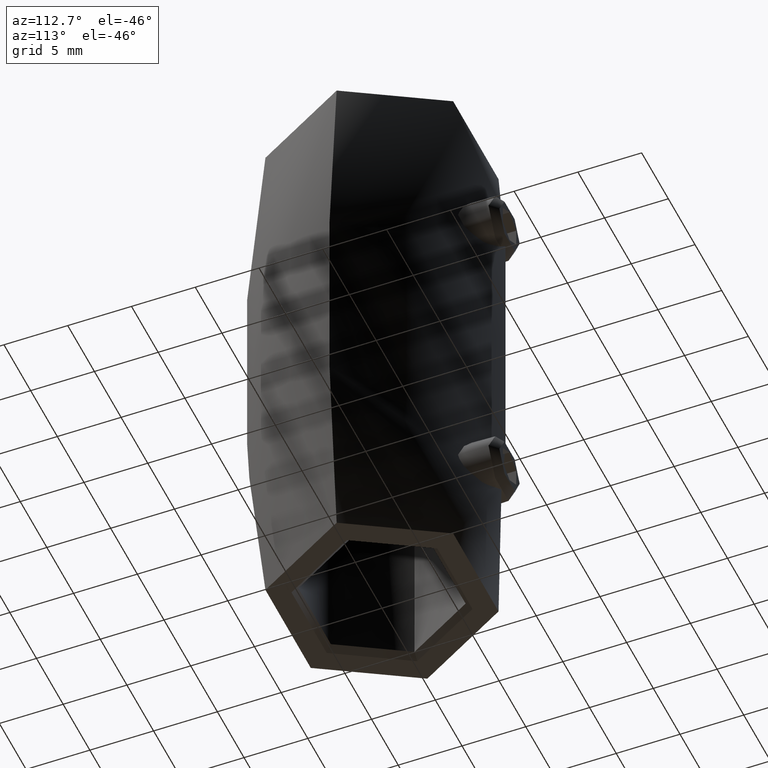
[diagram: clean part render]
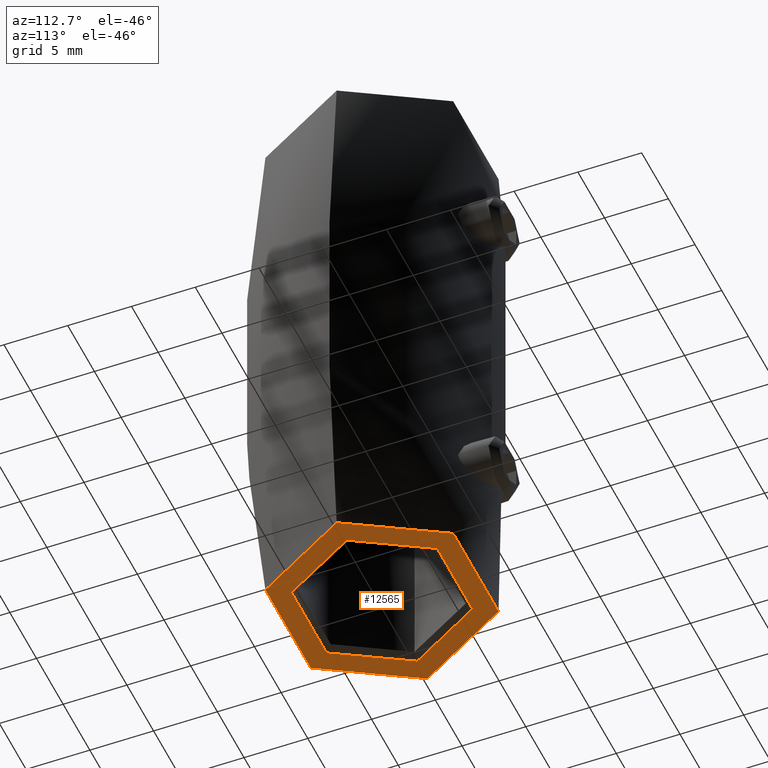
[diagram: same view with one face highlighted and labeled with its STEP entity id]
A machine part, auxiliary view. The second image highlights one B-rep face of the part: STEP entity #12565.
In plain terms, the highlighted planar face has unit normal (0, 0, 1).
Its self-contained STEP definition (entity closure, byte-faithful):
#317 = VERTEX_POINT ( 'NONE', #12329 ) ;
#1122 = ORIENTED_EDGE ( 'NONE', *, *, #11279, .F. ) ;
#2310 = CARTESIAN_POINT ( 'NONE',  ( 0.000000000000000000, 0.000000000000000000, -22.50000000000000000 ) ) ;
#2966 = DIRECTION ( 'NONE',  ( -0.000000000000000000, -0.000000000000000000, 1.000000000000000000 ) ) ;
#3221 = DIRECTION ( 'NONE',  ( 1.000000000000000000, 0.000000000000000000, 0.000000000000000000 ) ) ;
#3537 = DIRECTION ( 'NONE',  ( -0.000000000000000000, -0.000000000000000000, 1.000000000000000000 ) ) ;
#3576 = FACE_OUTER_BOUND ( 'NONE', #7611, .T. ) ;
#4242 = CARTESIAN_POINT ( 'NONE',  ( 0.000000000000000000, 0.000000000000000000, -22.50000000000000000 ) ) ;
#4318 = CARTESIAN_POINT ( 'NONE',  ( -6.600000000000001421, 0.000000000000000000, -22.50000000000000000 ) ) ;
#4337 = VERTEX_POINT ( 'NONE', #12863 ) ;
#4782 = ORIENTED_EDGE ( 'NONE', *, *, #14873, .T. ) ;
#5717 = AXIS2_PLACEMENT_3D ( 'NONE', #2310, #3537, #11269 ) ;
#7015 = FACE_BOUND ( 'NONE', #10613, .T. ) ;
#7186 = CARTESIAN_POINT ( 'NONE',  ( 0.000000000000000000, 6.099999999999999645, -22.50000000000000000 ) ) ;
#7313 = VERTEX_POINT ( 'NONE', #10211 ) ;
#7611 = EDGE_LOOP ( 'NONE', ( #7762, #1122 ) ) ;
#7762 = ORIENTED_EDGE ( 'NONE', *, *, #9379, .F. ) ;
#8233 = VERTEX_POINT ( 'NONE', #4318 ) ;
#8241 = AXIS2_PLACEMENT_3D ( 'NONE', #10946, #15919, #8308 ) ;
#8308 = DIRECTION ( 'NONE',  ( 1.000000000000000000, 0.000000000000000000, 0.000000000000000000 ) ) ;
#8329 = DIRECTION ( 'NONE',  ( 0.000000000000000000, -0.000000000000000000, 1.000000000000000000 ) ) ;
#8485 = DIRECTION ( 'NONE',  ( 1.000000000000000000, 0.000000000000000000, 0.000000000000000000 ) ) ;
#8570 = AXIS2_PLACEMENT_3D ( 'NONE', #13320, #16074, #3221 ) ;
#8643 = EDGE_CURVE ( 'NONE', #8233, #4337, #9862, .T. ) ;
#9379 = EDGE_CURVE ( 'NONE', #7313, #317, #11880, .T. ) ;
#9862 = CIRCLE ( 'NONE', #13510, 6.600000000000001421 ) ;
#10211 = CARTESIAN_POINT ( 'NONE',  ( 8.499999999999996447, 0.000000000000000000, -22.50000000000000000 ) ) ;
#10613 = EDGE_LOOP ( 'NONE', ( #14918, #4782 ) ) ;
#10946 = CARTESIAN_POINT ( 'NONE',  ( 0.000000000000000000, 0.000000000000000000, -22.50000000000000000 ) ) ;
#11269 = DIRECTION ( 'NONE',  ( 1.000000000000000000, 0.000000000000000000, 0.000000000000000000 ) ) ;
#11279 = EDGE_CURVE ( 'NONE', #317, #7313, #16516, .T. ) ;
#11880 = CIRCLE ( 'NONE', #5717, 8.499999999999996447 ) ;
#11990 = DIRECTION ( 'NONE',  ( 1.000000000000000000, 0.000000000000000000, 0.000000000000000000 ) ) ;
#12329 = CARTESIAN_POINT ( 'NONE',  ( -8.499999999999996447, 1.040949779275250337E-15, -22.50000000000000000 ) ) ;
#12565 = ADVANCED_FACE ( 'NONE', ( #7015, #3576 ), #14916, .F. ) ;
#12863 = CARTESIAN_POINT ( 'NONE',  ( 6.600000000000001421, 8.082668874372532992E-16, -22.50000000000000000 ) ) ;
#13320 = CARTESIAN_POINT ( 'NONE',  ( 0.000000000000000000, 0.000000000000000000, -22.50000000000000000 ) ) ;
#13510 = AXIS2_PLACEMENT_3D ( 'NONE', #4242, #2966, #11990 ) ;
#14873 = EDGE_CURVE ( 'NONE', #4337, #8233, #15248, .T. ) ;
#14916 = PLANE ( 'NONE',  #15357 ) ;
#14918 = ORIENTED_EDGE ( 'NONE', *, *, #8643, .T. ) ;
#15248 = CIRCLE ( 'NONE', #8570, 6.600000000000001421 ) ;
#15357 = AXIS2_PLACEMENT_3D ( 'NONE', #7186, #8329, #8485 ) ;
#15919 = DIRECTION ( 'NONE',  ( -0.000000000000000000, -0.000000000000000000, 1.000000000000000000 ) ) ;
#16074 = DIRECTION ( 'NONE',  ( -0.000000000000000000, -0.000000000000000000, 1.000000000000000000 ) ) ;
#16516 = CIRCLE ( 'NONE', #8241, 8.499999999999996447 ) ;